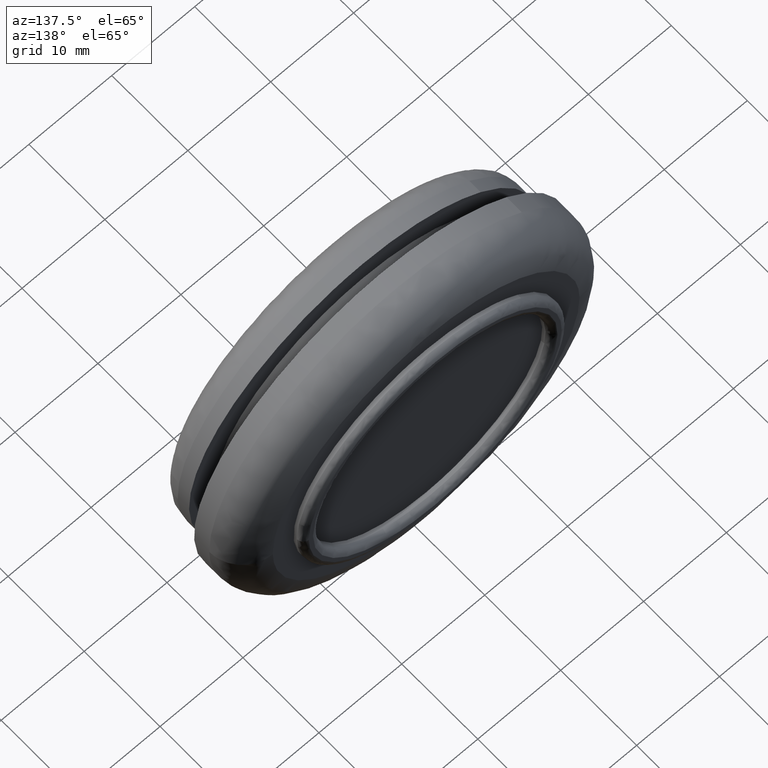
[diagram: clean part render]
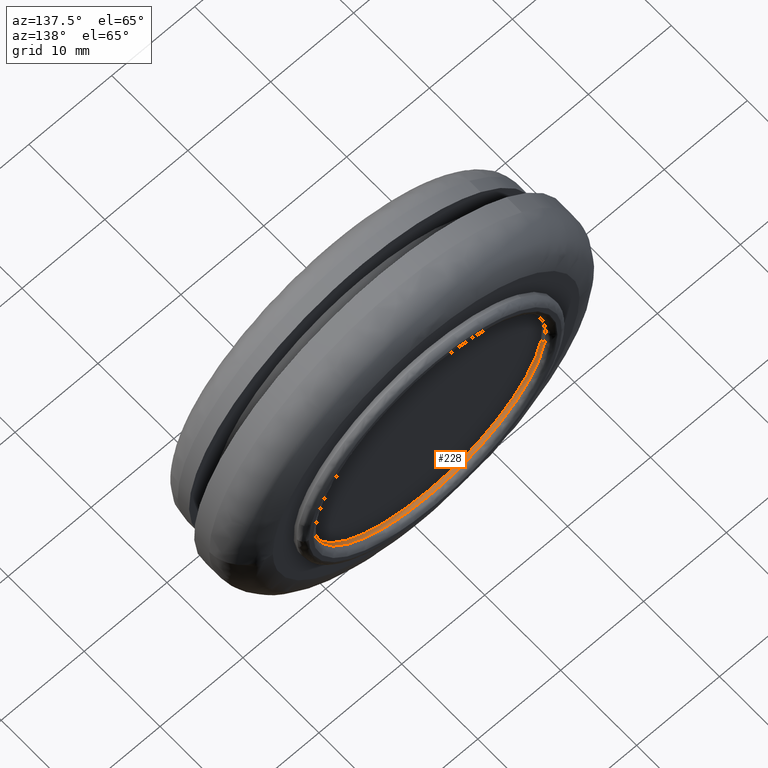
[diagram: same view with one face highlighted and labeled with its STEP entity id]
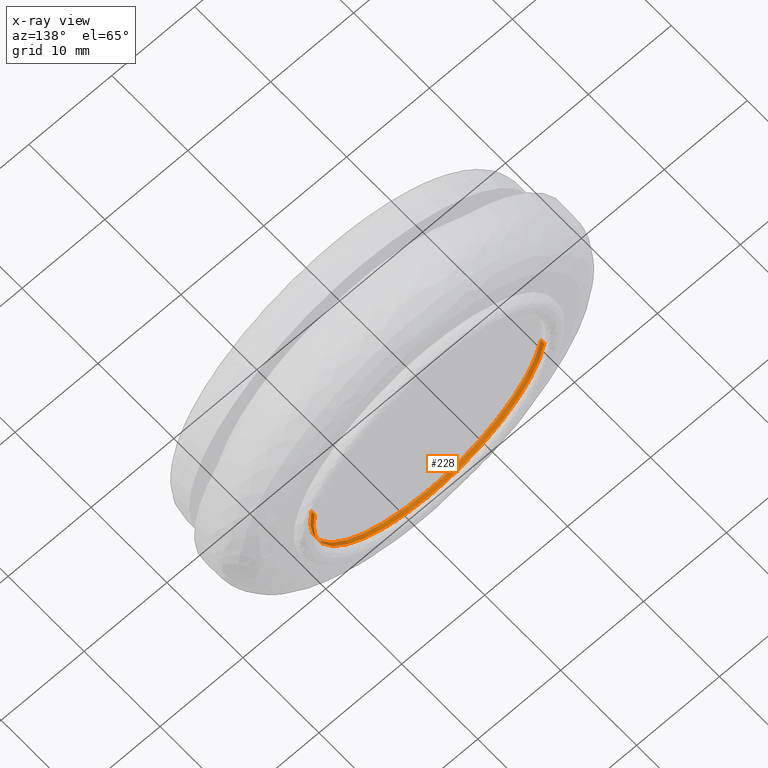
[diagram: x-ray of the same camera — body ghosted, the highlighted face saturated]
A machine part, auxiliary view. The second image highlights one B-rep face of the part: STEP entity #228.
The next image is the same camera in x-ray: the body ghosted, the highlighted face saturated — about 0% of this face is hidden behind the body in this view.
In plain terms, the highlighted face is a freeform B-spline surface patch.
Its self-contained STEP definition (entity closure, byte-faithful):
#10=CARTESIAN_POINT('',(-13.846222471316731,12.300000000000001,-2.069329184735181));
#11=VERTEX_POINT('',#10);
#12=CARTESIAN_POINT('',(0.0,12.300000000000001,-14.0));
#13=VERTEX_POINT('',#12);
#14=CARTESIAN_POINT('',(-13.846222471316734,12.300000000000001,-2.069329184735180));
#15=CARTESIAN_POINT('',(-12.063174036074843,12.300000000000001,-13.999999999999998));
#16=CARTESIAN_POINT('',(0.0,12.300000000000001,-14.0));
#24=(BOUNDED_CURVE()B_SPLINE_CURVE(2,(#14,#15,#16),.UNSPECIFIED.,.F.,.U.)B_SPLINE_CURVE_WITH_KNOTS((3,3),(0.775488938546991,1.0),.UNSPECIFIED.)CURVE()GEOMETRIC_REPRESENTATION_ITEM()RATIONAL_B_SPLINE_CURVE((0.946364937808819,0.736968930207213,1.0))REPRESENTATION_ITEM(''));
#25=EDGE_CURVE('',#11,#13,#24,.T.);
#44=CARTESIAN_POINT('',(13.846222471316731,12.300000000000001,2.069329184735181));
#45=VERTEX_POINT('',#44);
#59=CARTESIAN_POINT('',(0.0,12.300000000000001,-14.0));
#60=CARTESIAN_POINT('',(13.999999999999998,12.300000000000002,-13.999999999999998));
#61=CARTESIAN_POINT('',(14.0,12.300000000000001,-3.061516E-016));
#62=CARTESIAN_POINT('',(13.999999999999996,12.299999999999995,1.040378407381260));
#63=CARTESIAN_POINT('',(13.846222471316977,12.300000000000001,2.069329184735216));
#71=(BOUNDED_CURVE()B_SPLINE_CURVE(2,(#59,#60,#61,#62,#63),.UNSPECIFIED.,.F.,.U.)B_SPLINE_CURVE_WITH_KNOTS((3,2,3),(0.0,0.250000000000000,0.275488938546991),.UNSPECIFIED.)CURVE()GEOMETRIC_REPRESENTATION_ITEM()RATIONAL_B_SPLINE_CURVE((1.0,0.707106781186547,1.0,0.970137850979334,0.946364937808819))REPRESENTATION_ITEM(''));
#72=EDGE_CURVE('',#13,#45,#71,.T.);
#95=CARTESIAN_POINT('',(13.846225133910430,12.749999999930530,2.069311368702698));
#96=VERTEX_POINT('',#95);
#112=CARTESIAN_POINT('',(13.846225133910430,12.749999999930530,2.069311368702698));
#113=CARTESIAN_POINT('',(13.846222471316731,12.300000000000001,2.069329184735181));
#114=QUASI_UNIFORM_CURVE('',1,(#112,#113),.UNSPECIFIED.,.F.,.U.);
#115=EDGE_CURVE('',#96,#45,#114,.T.);
#119=CARTESIAN_POINT('',(-13.846225133910430,12.749999999930530,-2.069311368702697));
#120=VERTEX_POINT('',#119);
#121=CARTESIAN_POINT('',(-13.846225133910430,12.749999999930530,-2.069311368702697));
#122=CARTESIAN_POINT('',(-13.846222471316731,12.300000000000001,-2.069329184735181));
#123=QUASI_UNIFORM_CURVE('',1,(#121,#122),.UNSPECIFIED.,.F.,.U.);
#124=EDGE_CURVE('',#120,#11,#123,.T.);
#159=CARTESIAN_POINT('',(-13.846222087066829,12.761250000000000,-2.069331755814551));
#160=CARTESIAN_POINT('',(-11.776890331252281,12.761250000000000,-15.915553842881380));
#161=CARTESIAN_POINT('',(2.069331755814550,12.761250000000000,-13.846222087066829));
#162=CARTESIAN_POINT('',(15.915553842881380,12.761250000000000,-11.776890331252284));
#163=CARTESIAN_POINT('',(13.846222087066829,12.761250000000000,2.069331755814550));
#164=CARTESIAN_POINT('',(-13.846222087066829,12.288468750000000,-2.069331755814551));
#165=CARTESIAN_POINT('',(-11.776890331252281,12.288468749999996,-15.915553842881380));
#166=CARTESIAN_POINT('',(2.069331755814550,12.288468750000000,-13.846222087066829));
#167=CARTESIAN_POINT('',(15.915553842881380,12.288468749999996,-11.776890331252284));
#168=CARTESIAN_POINT('',(13.846222087066829,12.288468750000000,2.069331755814550));
#176=(BOUNDED_SURFACE()B_SPLINE_SURFACE(2,1,((#159,#164),(#160,#165),(#161,#166),(#162,#167),(#163,#168)),.UNSPECIFIED.,.F.,.F.,.U.)B_SPLINE_SURFACE_WITH_KNOTS((3,2,3),(2,2),(0.0,23.195959492893319,46.391918985786631),(0.0,0.472781250000003),.UNSPECIFIED.)GEOMETRIC_REPRESENTATION_ITEM()RATIONAL_B_SPLINE_SURFACE(((1.0,1.0),(0.707106781186548,0.707106781186548),(1.0,1.0),(0.707106781186548,0.707106781186548),(1.0,1.0)))REPRESENTATION_ITEM('')SURFACE());
#177=CARTESIAN_POINT('',(5.640690099993938,12.749999999868569,-12.813376416691669));
#178=VERTEX_POINT('',#177);
#179=CARTESIAN_POINT('',(5.640690099993938,12.749999999868574,-12.813376416691668));
#180=CARTESIAN_POINT('',(13.999999999993587,12.749999999877682,-9.133450450081565));
#181=CARTESIAN_POINT('',(13.999999999986530,12.749999999920650,-2.011656E-012));
#182=CARTESIAN_POINT('',(13.999999999985720,12.749999999925535,1.040369350692162));
#183=CARTESIAN_POINT('',(13.846225133910432,12.749999999930530,2.069311368702697));
#191=(BOUNDED_CURVE()B_SPLINE_CURVE(2,(#179,#180,#181,#182,#183),.UNSPECIFIED.,.F.,.U.)B_SPLINE_CURVE_WITH_KNOTS((3,2,3),(0.068414990138580,0.250000000000000,0.275488723286989),.UNSPECIFIED.)CURVE()GEOMETRIC_REPRESENTATION_ITEM()RATIONAL_B_SPLINE_CURVE((0.883563120518114,0.787259927893665,1.0,0.970138103172114,0.946365339344792))REPRESENTATION_ITEM(''));
#192=EDGE_CURVE('',#178,#96,#191,.T.);
#193=ORIENTED_EDGE('',*,*,#192,.F.);
#194=CARTESIAN_POINT('',(0.0,12.750000000000000,-14.0));
#195=VERTEX_POINT('',#194);
#196=CARTESIAN_POINT('',(0.0,12.750000000000000,-14.0));
#197=CARTESIAN_POINT('',(2.945159168792912,12.749999999934289,-14.000000000000002));
#198=CARTESIAN_POINT('',(5.640690099993938,12.749999999868574,-12.813376416691668));
#206=(BOUNDED_CURVE()B_SPLINE_CURVE(2,(#196,#197,#198),.UNSPECIFIED.,.F.,.U.)B_SPLINE_CURVE_WITH_KNOTS((3,3),(0.0,0.068414990138580),.UNSPECIFIED.)CURVE()GEOMETRIC_REPRESENTATION_ITEM()RATIONAL_B_SPLINE_CURVE((1.0,0.919846853292883,0.883563120518114))REPRESENTATION_ITEM(''));
#207=EDGE_CURVE('',#195,#178,#206,.T.);
#208=ORIENTED_EDGE('',*,*,#207,.F.);
#209=CARTESIAN_POINT('',(-13.846225133910432,12.749999999930530,-2.069311368702696));
#210=CARTESIAN_POINT('',(-12.063189730230370,12.749999999988191,-13.999999999998870));
#211=CARTESIAN_POINT('',(0.0,12.750000000000000,-14.0));
#219=(BOUNDED_CURVE()B_SPLINE_CURVE(2,(#209,#210,#211),.UNSPECIFIED.,.F.,.U.)B_SPLINE_CURVE_WITH_KNOTS((3,3),(0.775488723286989,1.0),.UNSPECIFIED.)CURVE()GEOMETRIC_REPRESENTATION_ITEM()RATIONAL_B_SPLINE_CURVE((0.946365339344792,0.736968678014434,1.0))REPRESENTATION_ITEM(''));
#220=EDGE_CURVE('',#120,#195,#219,.T.);
#221=ORIENTED_EDGE('',*,*,#220,.F.);
#222=ORIENTED_EDGE('',*,*,#124,.T.);
#223=ORIENTED_EDGE('',*,*,#25,.T.);
#224=ORIENTED_EDGE('',*,*,#72,.T.);
#225=ORIENTED_EDGE('',*,*,#115,.F.);
#226=EDGE_LOOP('',(#193,#208,#221,#222,#223,#224,#225));
#227=FACE_OUTER_BOUND('',#226,.T.);
#228=ADVANCED_FACE('',(#227),#176,.F.);